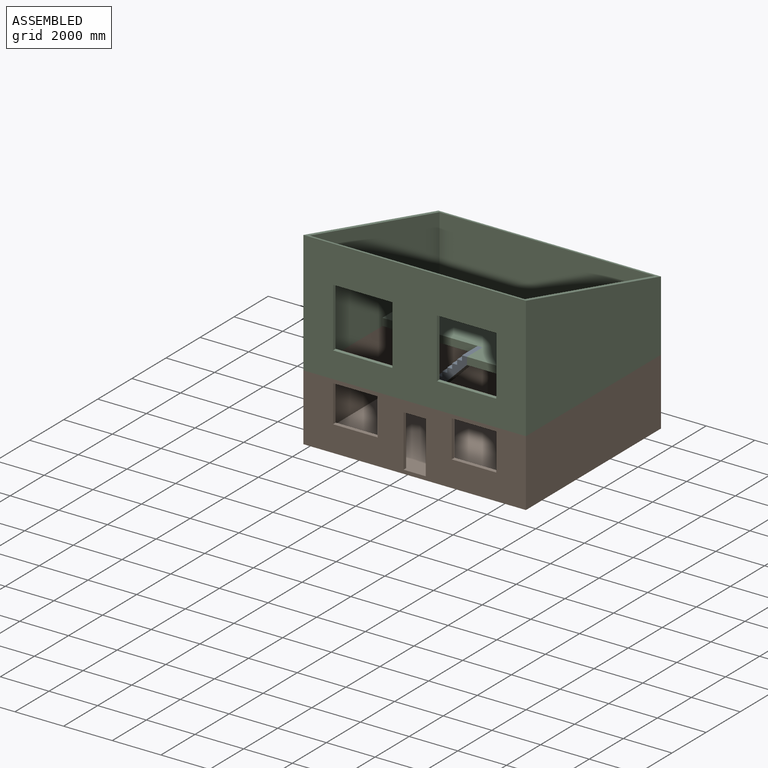
[diagram: assembled view]
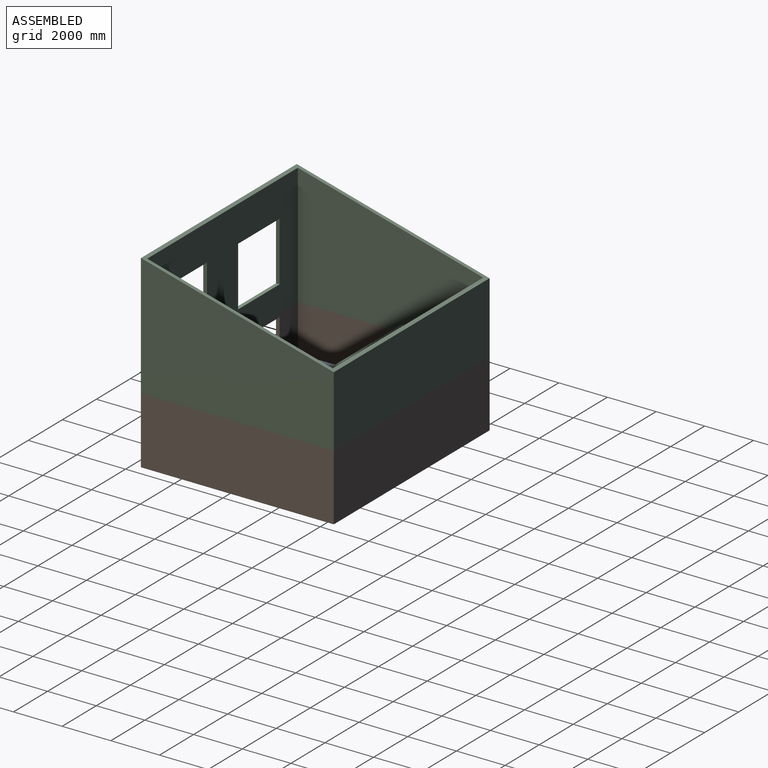
[diagram: assembled view, second angle]
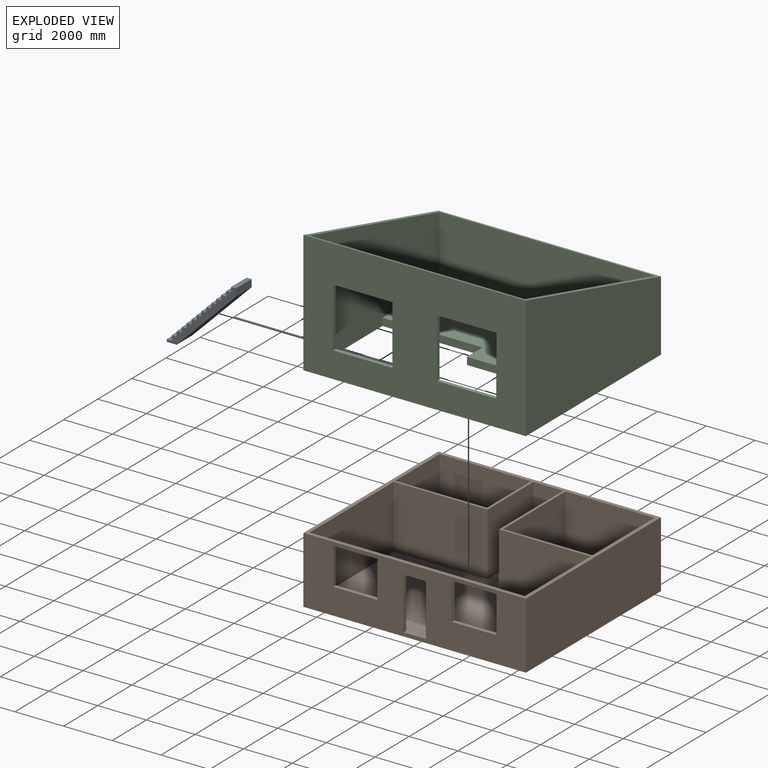
[diagram: exploded view]
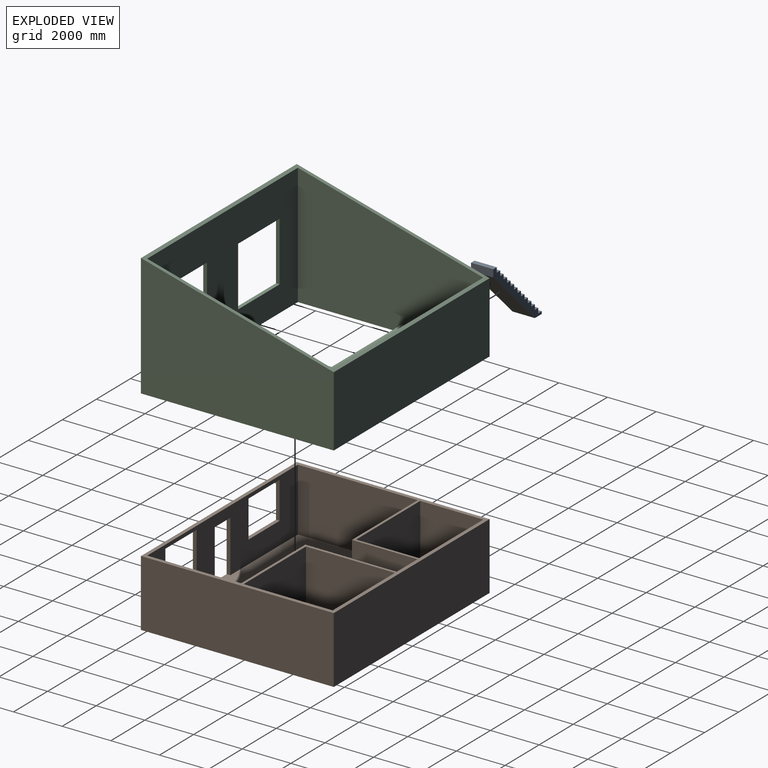
[diagram: exploded view, second angle]
ASSEMBLY  parts=3 mates=2
PART A: 33 faces, bbox 2844.8x914.4x2743.2 mm
  f0: plane 914.4x203.2mm, normal (0,0,1), area 185806.1mm2, adj f1,f30,f31,f32
  f1: plane 914.4x203.2mm, normal (-1,0,0), area 185806.1mm2, adj f0,f2,f31,f32
  f2: plane 914.4x203.2mm, normal (0,0,1), area 185806.1mm2, adj f1,f3,f31,f32
  f3: plane 914.4x203.2mm, normal (-1,0,0), area 185806.1mm2, adj f2,f4,f31,f32
  f4: plane 914.4x203.2mm, normal (0,0,1), area 185806.1mm2, adj f3,f5,f31,f32
  f5: plane 914.4x203.2mm, normal (-1,0,0), area 185806.1mm2, adj f4,f6,f31,f32
  f6: plane 914.4x203.2mm, normal (0,0,1), area 185806.1mm2, adj f5,f7,f31,f32
  f7: plane 914.4x203.2mm, normal (-1,0,0), area 185806.1mm2, adj f6,f8,f31,f32
  f8: plane 914.4x203.2mm, normal (0,0,1), area 185806.1mm2, adj f7,f9,f31,f32
  f9: plane 914.4x203.2mm, normal (-1,0,0), area 185806.1mm2, adj f8,f10,f31,f32
  f10: plane 914.4x203.2mm, normal (0,0,1), area 185806.1mm2, adj f9,f11,f31,f32
  f11: plane 914.4x203.2mm, normal (-1,0,0), area 185806.1mm2, adj f10,f12,f31,f32
  f12: plane 914.4x203.2mm, normal (0,0,1), area 185806.1mm2, adj f11,f13,f31,f32
  f13: plane 914.4x203.2mm, normal (-1,0,0), area 185806.1mm2, adj f12,f14,f31,f32
  f14: plane 914.4x203.2mm, normal (0,0,1), area 185806.1mm2, adj f13,f15,f31,f32
  f15: plane 914.4x203.2mm, normal (-1,0,0), area 185806.1mm2, adj f14,f16,f31,f32
  f16: plane 914.4x203.2mm, normal (0,0,1), area 185806.1mm2, adj f15,f17,f31,f32
  f17: plane 914.4x203.2mm, normal (-1,0,0), area 185806.1mm2, adj f16,f18,f31,f32
  f18: plane 914.4x203.2mm, normal (0,0,1), area 185806.1mm2, adj f17,f19,f31,f32
  f19: plane 914.4x203.2mm, normal (-1,0,0), area 185806.1mm2, adj f18,f20,f31,f32
  f20: plane 914.4x203.2mm, normal (0,0,1), area 185806.1mm2, adj f19,f21,f31,f32
  f21: plane 914.4x203.2mm, normal (-1,0,0), area 185806.1mm2, adj f20,f22,f31,f32
  f22: plane 914.4x203.2mm, normal (0,0,1), area 185806.1mm2, adj f21,f23,f31,f32
  f23: plane 914.4x203.2mm, normal (-1,0,0), area 185806.1mm2, adj f22,f24,f31,f32
  f24: plane 914.4x203.2mm, normal (0,0,1), area 185806.1mm2, adj f23,f25,f31,f32
  f25: plane 914.4x203.2mm, normal (-1,0,0), area 185806.1mm2, adj f24,f26,f31,f32
  f26: plane 914.4x203.2mm, normal (0,0,1), area 185806.1mm2, adj f25,f27,f31,f32
  f27: plane 914.4x101.6mm, normal (-1,0,0), area 92903mm2, adj f26,f28,f31,f32
  f28: plane 914.4x406.4mm, normal (0,0,-1), area 371612.2mm2, adj f27,f29,f31,f32
  f29: plane 2438.4x2438.4mm, normal (0.71,0,-0.71), area 3153233.7mm2, adj f28,f30,f31,f32
  f30: plane 914.4x304.8mm, normal (1,0,0), area 278709.1mm2, adj f0,f29,f31,f32
  f31: plane 2844.8x2743.2mm, normal (0,-1,0), area 1073546.2mm2, adj f0,f1,f2,f3,f4,f5,f6,f7
  f32: plane 2844.8x2743.2mm, normal (0,1,0), area 1073546.2mm2, adj f0,f1,f2,f3,f4,f5,f6,f7
PART B: 36 faces, bbox 9144x7924.8x2743.2 mm
  f0: plane 8839.2x7772.4mm, normal (0,0,1), area 42967656mm2, adj f5,f7,f8,f15,f16,f17,f19,f30
  f1: plane 3759.2x2590.8mm, normal (0,0,1), area 9739335.4mm2, adj f2,f3,f32,f33
  f2: plane 3759.2x2590.8mm, normal (0,-1,0), area 9739335.4mm2, adj f1,f3,f9,f32
  f3: plane 2590.8x2590.8mm, normal (1,0,0), area 6712244.6mm2, adj f1,f2,f9,f33
  f4: plane 3657.6x3657.6mm, normal (0,0,1), area 13378037.8mm2, adj f6,f14,f28,f29
  f5: plane 2590.8x1219.2mm, normal (0,-1,0), area 3158703.4mm2, adj f0,f9,f31,f34
  f6: plane 3657.6x2590.8mm, normal (-1,0,0), area 9476110.1mm2, adj f4,f9,f14,f28
  f7: plane 9144x2743.2mm, normal (0,-1,0), area 17558674.6mm2, adj f0,f9,f11,f12,f13,f17,f18,f19
  f8: plane 8839.2x2590.8mm, normal (0,1,0), area 15375453.1mm2, adj f0,f9,f15,f16,f17,f18,f19,f20
  f9: plane 9144x7924.8mm, normal (0,0,1), area 6518696.6mm2, adj f2,f3,f5,f6,f7,f8,f10,f11
  f10: plane 9144x2743.2mm, normal (0,1,0), area 25083820.8mm2, adj f9,f11,f12,f13
  f11: plane 7924.8x2743.2mm, normal (-1,0,0), area 21739311.4mm2, adj f7,f9,f10,f13
  f12: plane 7924.8x2743.2mm, normal (1,0,0), area 21739311.4mm2, adj f7,f9,f10,f13
  f13: plane 9144x7924.8mm, normal (0,0,-1), area 72464371.2mm2, adj f7,f10,f11,f12
  f14: plane 3657.6x2590.8mm, normal (0,-1,0), area 9476110.1mm2, adj f4,f6,f9,f29
  f15: plane 4927.6x2590.8mm, normal (1,0,0), area 12766426.1mm2, adj f0,f8,f9,f35
  f16: plane 3860.8x2590.8mm, normal (-1,0,0), area 10002560.6mm2, adj f0,f8,f9,f30
  f17: plane 2133.6x152.4mm, normal (-1,0,0), area 325160.6mm2, adj f0,f7,f8,f18
  f18: plane 914.4x152.4mm, normal (0,0,-1), area 139354.6mm2, adj f7,f8,f17,f19
  f19: plane 2133.6x152.4mm, normal (1,0,0), area 325160.6mm2, adj f0,f7,f8,f18
  f20: plane 1828.8x152.4mm, normal (0,0,-1), area 278709.1mm2, adj f7,f8,f21,f23
  f21: plane 1524x152.4mm, normal (1,0,0), area 232257.6mm2, adj f7,f8,f20,f22
  f22: plane 1828.8x152.4mm, normal (0,0,1), area 278709.1mm2, adj f7,f8,f21,f23
  f23: plane 1524x152.4mm, normal (-1,0,0), area 232257.6mm2, adj f7,f8,f20,f22
  f24: plane 1828.8x152.4mm, normal (0,0,-1), area 278709.1mm2, adj f7,f8,f25,f27
  f25: plane 1524x152.4mm, normal (1,0,0), area 232257.6mm2, adj f7,f8,f24,f26
  f26: plane 1828.8x152.4mm, normal (0,0,1), area 278709.1mm2, adj f7,f8,f25,f27
  f27: plane 1524x152.4mm, normal (-1,0,0), area 232257.6mm2, adj f7,f8,f24,f26
  f28: plane 3657.6x2590.8mm, normal (0,1,0), area 9476110.1mm2, adj f4,f6,f9,f29
  f29: plane 3657.6x2590.8mm, normal (1,0,0), area 9476110.1mm2, adj f4,f9,f14,f28
  f30: plane 3759.2x2590.8mm, normal (0,-1,0), area 9739335.4mm2, adj f0,f9,f16,f31
  f31: plane 3759.2x2590.8mm, normal (-1,0,0), area 9739335.4mm2, adj f0,f5,f9,f30
  f32: plane 2590.8x2590.8mm, normal (-1,0,0), area 6712244.6mm2, adj f1,f2,f9,f33
  f33: plane 3759.2x2590.8mm, normal (0,1,0), area 9739335.4mm2, adj f1,f3,f9,f32
  f34: plane 2692.4x2590.8mm, normal (1,0,0), area 6975469.9mm2, adj f0,f5,f9,f35
  f35: plane 3860.8x2590.8mm, normal (0,-1,0), area 10002560.6mm2, adj f0,f9,f15,f34
PART C: 22 faces, bbox 9144x7924.8x5029.2 mm
  f0: plane 9144x5029.2mm, normal (0,-1,0), area 34095415.7mm2, adj f5,f6,f7,f9,f10,f11,f12,f13
  f1: plane 9144x2905.76mm, normal (0,1,0), area 26570235.1mm2, adj f5,f6,f7,f21
  f2: plane 7620x4988.36mm, normal (1,0,0), area 29210249.8mm2, adj f4,f6,f8,f17,f20,f21
  f3: plane 7620x4988.36mm, normal (-1,0,0), area 28931540.7mm2, adj f4,f6,f8,f19,f20,f21
  f4: plane 8839.2x4988.36mm, normal (0,1,0), area 32201562.7mm2, adj f2,f3,f6,f9,f10,f11,f12,f13
  f5: plane 7924.8x5029.2mm, normal (1,0,0), area 31441470.6mm2, adj f0,f1,f6,f21
  f6: plane 9144x7924.8mm, normal (0,0.26,0.97), area 5289916.7mm2, adj f0,f1,f2,f3,f4,f5,f7,f8
  f7: plane 7924.8x5029.2mm, normal (-1,0,0), area 31441470.6mm2, adj f0,f1,f6,f21
  f8: plane 8839.2x2641.79mm, normal (0,-1,0), area 23351325.2mm2, adj f2,f3,f6,f20
  f9: plane 2438.4x152.4mm, normal (0,0,1), area 371612.2mm2, adj f0,f4,f10,f11
  f10: plane 2438.4x152.4mm, normal (-1,0,0), area 371612.2mm2, adj f0,f4,f9,f12
  f11: plane 2438.4x152.4mm, normal (1,0,0), area 371612.2mm2, adj f0,f4,f9,f12
  f12: plane 2438.4x152.4mm, normal (0,0,-1), area 371612.2mm2, adj f0,f4,f10,f11
  f13: plane 2438.4x152.4mm, normal (0,0,1), area 371612.2mm2, adj f0,f4,f14,f15
  f14: plane 2438.4x152.4mm, normal (-1,0,0), area 371612.2mm2, adj f0,f4,f13,f16
  f15: plane 2438.4x152.4mm, normal (1,0,0), area 371612.2mm2, adj f0,f4,f13,f16
  f16: plane 2438.4x152.4mm, normal (0,0,-1), area 371612.2mm2, adj f0,f4,f14,f15
  f17: plane 4114.8x304.8mm, normal (0,-1,0), area 1254191mm2, adj f2,f18,f20,f21
  f18: plane 914.4x304.8mm, normal (-1,0,0), area 278709.1mm2, adj f17,f19,f20,f21
  f19: plane 4724.4x304.8mm, normal (0,-1,0), area 1439997.1mm2, adj f3,f18,f20,f21
  f20: plane 8839.2x4267.2mm, normal (0,0,1), area 33956061.1mm2, adj f2,f3,f8,f17,f18,f19
  f21: plane 9144x7924.8mm, normal (0,0,-1), area 39065728.3mm2, adj f0,f1,f2,f3,f4,f5,f7,f17
PLACE A t=(-508,457.2,3048)mm
PLACE B at identity fixed
PLACE C t=(0,0,152.4)mm
MATE fastened C.f21 <-> B.f9  axis (0,0,-1) through (-4572,-3962.4,2743.2)mm
MATE fastened A.f30 <-> C.f18  axis (1,0,0) through (-304.8,0,3048)mm
